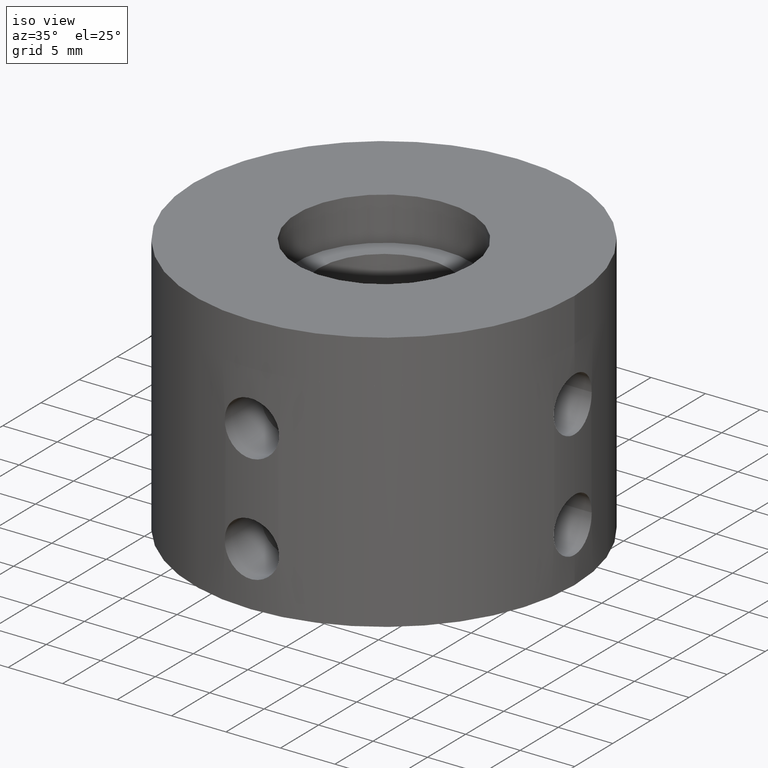
[diagram: clean part render]
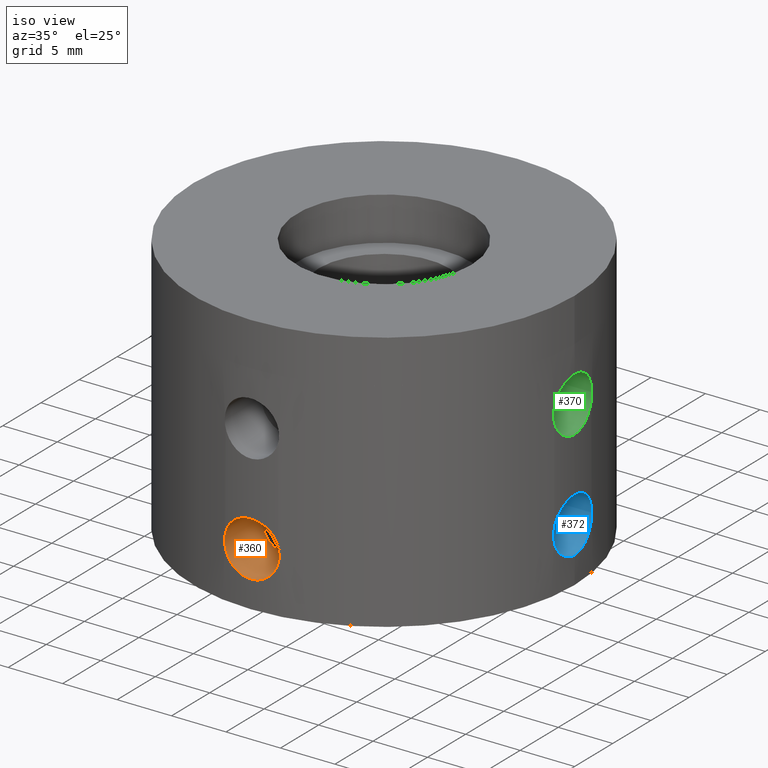
[diagram: same view with three faces highlighted in distinct colors, each labeled with its STEP entity id]
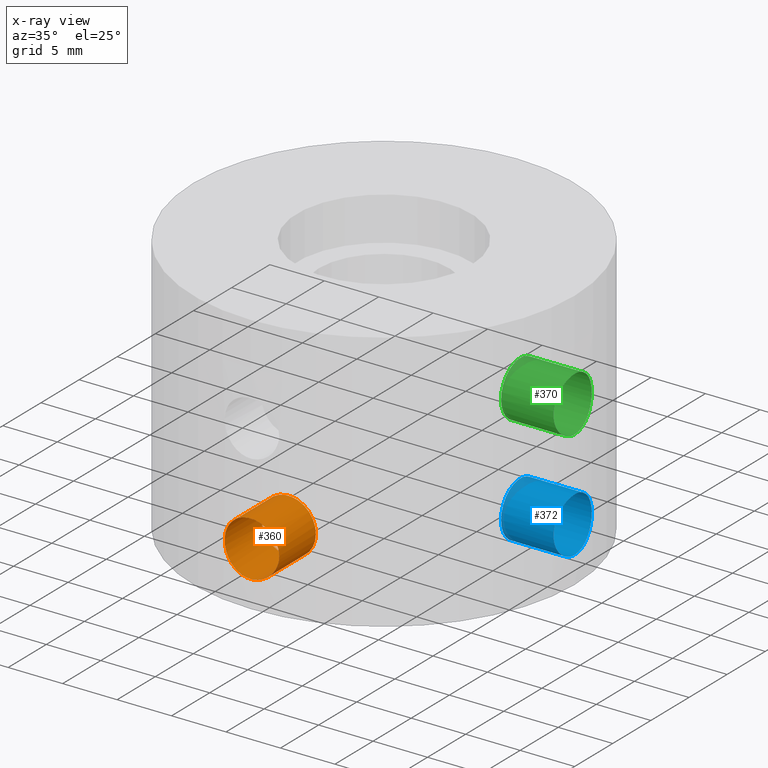
[diagram: x-ray of the same camera — body ghosted, the three highlighted faces saturated]
A machine part, iso view with three faces highlighted in distinct colors.
The next image is the same camera in x-ray (body ghosted, the three faces saturated) — at least one of them is partly hidden behind the body in this view.
Their STEP definitions:

[orange] entity #360 — the highlighted cylindrical surface (bore or boss wall) has radius 2.5 mm, axis along (-0, 1, -0).
#360 = ADVANCED_FACE( '', ( #437, #438 ), #439, .F. );
#437 = FACE_OUTER_BOUND( '', #609, .T. );
#438 = FACE_OUTER_BOUND( '', #610, .T. );
#439 = CYLINDRICAL_SURFACE( '', #611, 2.50000000000000 );
#609 = EDGE_LOOP( '', ( #783 ) );
#610 = EDGE_LOOP( '', ( #784 ) );
#611 = AXIS2_PLACEMENT_3D( '', #785, #786, #787 );
#783 = ORIENTED_EDGE( '', *, *, #1192, .T. );
#784 = ORIENTED_EDGE( '', *, *, #1189, .T. );
#785 = CARTESIAN_POINT( '', ( 0.000000000000000, -17.5000000000000, -29.0000000000000 ) );
#786 = DIRECTION( '', ( -0.000000000000000, 1.00000000000000, -0.000000000000000 ) );
#787 = DIRECTION( '', ( 1.00000000000000, 0.000000000000000, 0.000000000000000 ) );
#1189 = EDGE_CURVE( '', #1304, #1304, #1305, .T. );
#1192 = EDGE_CURVE( '', #1310, #1310, #1311, .T. );
#1304 = VERTEX_POINT( '', #1685 );
#1305 = B_SPLINE_CURVE_WITH_KNOTS( '', 3, ( #1686, #1687, #1688, #1689, #1690, #1691, #1692, #1693, #1694, #1695, #1696, #1697, #1698, #1699, #1700, #1701, #1702, #1703, #1704, #1705, #1706, #1707, #1708, #1709, #1710, #1711, #1712, #1713, #1714, #1715, #1716, #1717, #1718, #1719, #1720, #1721, #1722, #1723, #1724, #1725, #1726, #1727, #1728, #1729, #1730, #1731, #1732, #1733, #1734, #1735, #1736, #1737, #1738, #1739, #1740, #1741, #1742, #1743, #1744, #1745, #1746, #1747, #1748, #1749 ), .UNSPECIFIED., .T., .F., ( 2, 2, 2, 2, 2, 2, 2, 2, 2, 2, 2, 2, 2, 2, 2, 2, 2, 2, 2, 2, 2, 2, 2, 2, 2, 2, 2, 2, 2, 2, 2, 2, 2, 2 ), ( -0.000489074391735322, 0.000000000000000, 0.000489074391735320, 0.000978148783470640, 0.00146722317520596, 0.00195629756694128, 0.00244537195867660, 0.00293444635041192, 0.00342352074214724, 0.00391259513388256, 0.00440166952561788, 0.00489074391735320, 0.00537981830908852, 0.00586889270082384, 0.00635796709255916, 0.00684704148429448, 0.00733611587602980, 0.00782519026776512, 0.00831426465950044, 0.00880333905123576, 0.00929241344297108, 0.00978148783470640, 0.0102705622264417, 0.0107596366181770, 0.0112487110099124, 0.0117377854016477, 0.0122268597933830, 0.0127159341851183, 0.0132050085768536, 0.0136940829685890, 0.0146722317520596, 0.0151613061437949, 0.0156503805355302, 0.0161394549272656 ), .UNSPECIFIED. );
#1310 = VERTEX_POINT( '', #1754 );
#1311 = CIRCLE( '', #1755, 2.50000000000000 );
#1685 = CARTESIAN_POINT( '', ( 2.50000000000000, -17.3205080756888, -29.0000000000000 ) );
#1686 = CARTESIAN_POINT( '', ( 2.50000000000000, -17.3205080756888, -29.1653887530029 ) );
#1687 = CARTESIAN_POINT( '', ( 2.50000000000000, -17.3205080756888, -28.8346112469971 ) );
#1688 = CARTESIAN_POINT( '', ( 2.48375005439057, -17.3228755735567, -28.6720291116467 ) );
#1689 = CARTESIAN_POINT( '', ( 2.42011983415809, -17.3318796573807, -28.3522352088859 ) );
#1690 = CARTESIAN_POINT( '', ( 2.37195188220817, -17.3386232166662, -28.1933502748282 ) );
#1691 = CARTESIAN_POINT( '', ( 2.24639795610236, -17.3553365569166, -27.8907048483610 ) );
#1692 = CARTESIAN_POINT( '', ( 2.16959767322640, -17.3652293728603, -27.7471975144319 ) );
#1693 = CARTESIAN_POINT( '', ( 1.98818689140878, -17.3869335456414, -27.4756047046959 ) );
#1694 = CARTESIAN_POINT( '', ( 1.88273700484890, -17.3988131925760, -27.3471780258212 ) );
#1695 = CARTESIAN_POINT( '', ( 1.65241163963693, -17.4221966156043, -27.1169028487759 ) );
#1696 = CARTESIAN_POINT( '', ( 1.52669622257395, -17.4338170326531, -27.0134933070715 ) );
#1697 = CARTESIAN_POINT( '', ( 1.25349885123339, -17.4555870228991, -26.8307257372503 ) );
#1698 = CARTESIAN_POINT( '', ( 1.10830857915623, -17.4655182767391, -26.7531908110721 ) );
#1699 = CARTESIAN_POINT( '', ( 0.807585234298986, -17.4820045381267, -26.6284381670670 ) );
#1700 = CARTESIAN_POINT( '', ( 0.649822633085166, -17.4886763560253, -26.5803276802069 ) );
#1701 = CARTESIAN_POINT( '', ( 0.327023422269617, -17.4976891566160, -26.5160234963008 ) );
#1702 = CARTESIAN_POINT( '', ( 0.164677534772312, -17.4999868203029, -26.5000922578938 ) );
#1703 = CARTESIAN_POINT( '', ( -0.161864352663193, -17.5000130666400, -26.4999085335056 ) );
#1704 = CARTESIAN_POINT( '', ( -0.327737723393054, -17.4976665366731, -26.5161856257475 ) );
#1705 = CARTESIAN_POINT( '', ( -0.648525581797024, -17.4887152419410, -26.5800494982680 ) );
#1706 = CARTESIAN_POINT( '', ( -0.804465563497045, -17.4821579416789, -26.6272997505694 ) );
#1707 = CARTESIAN_POINT( '', ( -1.10740105850528, -17.4655854192260, -26.7526606370817 ) );
#1708 = CARTESIAN_POINT( '', ( -1.25349955951706, -17.4555770013346, -26.8308464782993 ) );
#1709 = CARTESIAN_POINT( '', ( -1.52415447594400, -17.4340294461347, -27.0116737491357 ) );
#1710 = CARTESIAN_POINT( '', ( -1.65059013684919, -17.4223787060199, -27.1151369751400 ) );
#1711 = CARTESIAN_POINT( '', ( -1.88372181932627, -17.3987160354789, -27.3481075913539 ) );
#1712 = CARTESIAN_POINT( '', ( -1.98701142548394, -17.3870669816768, -27.4741321047775 ) );
#1713 = CARTESIAN_POINT( '', ( -2.16806915326313, -17.3654193377813, -27.7446261969663 ) );
#1714 = CARTESIAN_POINT( '', ( -2.24646905758116, -17.3553272354625, -27.8908588641385 ) );
#1715 = CARTESIAN_POINT( '', ( -2.37195868793999, -17.3386221672705, -28.1933840637356 ) );
#1716 = CARTESIAN_POINT( '', ( -2.41934185317207, -17.3319887773045, -28.3492046382361 ) );
#1717 = CARTESIAN_POINT( '', ( -2.48350961982411, -17.3229105506944, -28.6699551944893 ) );
#1718 = CARTESIAN_POINT( '', ( -2.49993744371716, -17.3205171049098, -28.8357919977070 ) );
#1719 = CARTESIAN_POINT( '', ( -2.50006219134147, -17.3204990991425, -29.1622976584583 ) );
#1720 = CARTESIAN_POINT( '', ( -2.48428818139188, -17.3227988081478, -29.3246993890653 ) );
#1721 = CARTESIAN_POINT( '', ( -2.42023288897565, -17.3318642701497, -29.6477578440925 ) );
#1722 = CARTESIAN_POINT( '', ( -2.37231553470365, -17.3385715935937, -29.8053823074157 ) );
#1723 = CARTESIAN_POINT( '', ( -2.24778206833119, -17.3551554782911, -30.1063441736563 ) );
#1724 = CARTESIAN_POINT( '', ( -2.17013755315987, -17.3651643350834, -30.2519763867538 ) );
#1725 = CARTESIAN_POINT( '', ( -1.98781455164967, -17.3869785383297, -30.5249705508217 ) );
#1726 = CARTESIAN_POINT( '', ( -1.88455980893661, -17.3986155516757, -30.6507539239646 ) );
#1727 = CARTESIAN_POINT( '', ( -1.65432593641216, -17.4220146505674, -30.8814249618461 ) );
#1728 = CARTESIAN_POINT( '', ( -1.52589889630590, -17.4338789039367, -30.9870199982675 ) );
#1729 = CARTESIAN_POINT( '', ( -1.25472142408134, -17.4554912628326, -31.1684764382427 ) );
#1730 = CARTESIAN_POINT( '', ( -1.11131226557187, -17.4653361941806, -31.2454090618979 ) );
#1731 = CARTESIAN_POINT( '', ( -0.808563706969454, -17.4819680831175, -31.3713079805532 ) );
#1732 = CARTESIAN_POINT( '', ( -0.649900884721679, -17.4886588963650, -31.4195434902369 ) );
#1733 = CARTESIAN_POINT( '', ( -0.330269181233335, -17.4976136493322, -31.4834419922835 ) );
#1734 = CARTESIAN_POINT( '', ( -0.167426063724433, -17.4999794691530, -31.4998562840184 ) );
#1735 = CARTESIAN_POINT( '', ( 0.163106277650211, -17.5000202642677, -31.5001418499261 ) );
#1736 = CARTESIAN_POINT( '', ( 0.325666194006859, -17.4977012606733, -31.4840557735051 ) );
#1737 = CARTESIAN_POINT( '', ( 0.645592170960222, -17.4888198180004, -31.4207028534287 ) );
#1738 = CARTESIAN_POINT( '', ( 0.804646892438287, -17.4821481653381, -31.3726264795809 ) );
#1739 = CARTESIAN_POINT( '', ( 1.10725278250377, -17.4655933873425, -31.2473994546490 ) );
#1740 = CARTESIAN_POINT( '', ( 1.25084286177342, -17.4557724728432, -31.1707352647557 ) );
#1741 = CARTESIAN_POINT( '', ( 1.52275225870540, -17.4341568780118, -30.9894534458265 ) );
#1742 = CARTESIAN_POINT( '', ( 1.65120149566898, -17.4223116379704, -30.8841544612839 ) );
#1743 = CARTESIAN_POINT( '', ( 1.99682143856960, -17.3872465014420, -30.5390652343455 ) );
#1744 = CARTESIAN_POINT( '', ( 2.18331252924778, -17.3637281015119, -30.2606140254605 ) );
#1745 = CARTESIAN_POINT( '', ( 2.37084502506340, -17.3387736205025, -29.8096877160496 ) );
#1746 = CARTESIAN_POINT( '', ( 2.41911909665361, -17.3320203069142, -29.6519221726083 ) );
#1747 = CARTESIAN_POINT( '', ( 2.48374795185065, -17.3228768175138, -29.3288401353395 ) );
#1748 = CARTESIAN_POINT( '', ( 2.50000000000000, -17.3205080756888, -29.1653887530029 ) );
#1749 = CARTESIAN_POINT( '', ( 2.50000000000000, -17.3205080756888, -28.8346112469971 ) );
#1754 = CARTESIAN_POINT( '', ( 2.50000000000000, -12.5000000000000, -29.0000000000000 ) );
#1755 = AXIS2_PLACEMENT_3D( '', #2320, #2321, #2322 );
#2320 = CARTESIAN_POINT( '', ( 0.000000000000000, -12.5000000000000, -29.0000000000000 ) );
#2321 = DIRECTION( '', ( -0.000000000000000, 1.00000000000000, 0.000000000000000 ) );
#2322 = DIRECTION( '', ( 1.00000000000000, 0.000000000000000, 0.000000000000000 ) );

[blue] entity #372 — the highlighted cylindrical surface (bore or boss wall) has radius 2.5 mm, axis along (-1, 0, -0).
#372 = ADVANCED_FACE( '', ( #477, #478 ), #479, .F. );
#477 = FACE_OUTER_BOUND( '', #649, .T. );
#478 = FACE_OUTER_BOUND( '', #650, .T. );
#479 = CYLINDRICAL_SURFACE( '', #651, 2.50000000000000 );
#649 = EDGE_LOOP( '', ( #847 ) );
#650 = EDGE_LOOP( '', ( #848 ) );
#651 = AXIS2_PLACEMENT_3D( '', #849, #850, #851 );
#847 = ORIENTED_EDGE( '', *, *, #1204, .T. );
#848 = ORIENTED_EDGE( '', *, *, #1187, .T. );
#849 = CARTESIAN_POINT( '', ( 17.5000000000000, -1.07153055959458E-015, -29.0000000000000 ) );
#850 = DIRECTION( '', ( -1.00000000000000, 6.12303176911189E-017, -0.000000000000000 ) );
#851 = DIRECTION( '', ( 6.12303176911189E-017, 1.00000000000000, 0.000000000000000 ) );
#1187 = EDGE_CURVE( '', #1300, #1300, #1301, .T. );
#1204 = EDGE_CURVE( '', #1334, #1334, #1335, .T. );
#1300 = VERTEX_POINT( '', #1555 );
#1301 = B_SPLINE_CURVE_WITH_KNOTS( '', 3, ( #1556, #1557, #1558, #1559, #1560, #1561, #1562, #1563, #1564, #1565, #1566, #1567, #1568, #1569, #1570, #1571, #1572, #1573, #1574, #1575, #1576, #1577, #1578, #1579, #1580, #1581, #1582, #1583, #1584, #1585, #1586, #1587, #1588, #1589, #1590, #1591, #1592, #1593, #1594, #1595, #1596, #1597, #1598, #1599, #1600, #1601, #1602, #1603, #1604, #1605, #1606, #1607, #1608, #1609, #1610, #1611, #1612, #1613, #1614, #1615, #1616, #1617, #1618, #1619 ), .UNSPECIFIED., .T., .F., ( 2, 2, 2, 2, 2, 2, 2, 2, 2, 2, 2, 2, 2, 2, 2, 2, 2, 2, 2, 2, 2, 2, 2, 2, 2, 2, 2, 2, 2, 2, 2, 2, 2, 2 ), ( -0.000489074391735318, 0.000000000000000, 0.000489074391735320, 0.000978148783470640, 0.00146722317520596, 0.00195629756694128, 0.00244537195867660, 0.00293444635041192, 0.00342352074214724, 0.00391259513388256, 0.00440166952561788, 0.00489074391735321, 0.00537981830908853, 0.00586889270082385, 0.00635796709255917, 0.00684704148429449, 0.00733611587602981, 0.00782519026776513, 0.00831426465950045, 0.00880333905123577, 0.00929241344297109, 0.00978148783470641, 0.0102705622264417, 0.0107596366181771, 0.0112487110099124, 0.0117377854016477, 0.0122268597933830, 0.0127159341851183, 0.0132050085768537, 0.0136940829685890, 0.0146722317520596, 0.0151613061437949, 0.0156503805355302, 0.0161394549272656 ), .UNSPECIFIED. );
#1334 = VERTEX_POINT( '', #1990 );
#1335 = CIRCLE( '', #1991, 2.50000000000000 );
#1555 = CARTESIAN_POINT( '', ( 17.3205080756888, 2.50000000000000, -29.0000000000000 ) );
#1556 = CARTESIAN_POINT( '', ( 17.3205080756888, 2.50000000000000, -29.1653887530028 ) );
#1557 = CARTESIAN_POINT( '', ( 17.3205080756888, 2.50000000000000, -28.8346112469971 ) );
#1558 = CARTESIAN_POINT( '', ( 17.3228755735567, 2.48375005439057, -28.6720291116466 ) );
#1559 = CARTESIAN_POINT( '', ( 17.3318796573807, 2.42011983415809, -28.3522352088859 ) );
#1560 = CARTESIAN_POINT( '', ( 17.3386232166662, 2.37195188220817, -28.1933502748283 ) );
#1561 = CARTESIAN_POINT( '', ( 17.3553365569166, 2.24639795610235, -27.8907048483610 ) );
#1562 = CARTESIAN_POINT( '', ( 17.3652293728603, 2.16959767322640, -27.7471975144319 ) );
#1563 = CARTESIAN_POINT( '', ( 17.3869335456414, 1.98818689140878, -27.4756047046959 ) );
#1564 = CARTESIAN_POINT( '', ( 17.3988131925760, 1.88273700484889, -27.3471780258212 ) );
#1565 = CARTESIAN_POINT( '', ( 17.4221966156043, 1.65241163963692, -27.1169028487759 ) );
#1566 = CARTESIAN_POINT( '', ( 17.4338170326531, 1.52669622257395, -27.0134933070715 ) );
#1567 = CARTESIAN_POINT( '', ( 17.4555870228991, 1.25349885123339, -26.8307257372504 ) );
#1568 = CARTESIAN_POINT( '', ( 17.4655182767391, 1.10830857915622, -26.7531908110721 ) );
#1569 = CARTESIAN_POINT( '', ( 17.4820045381267, 0.807585234298985, -26.6284381670670 ) );
#1570 = CARTESIAN_POINT( '', ( 17.4886763560253, 0.649822633085165, -26.5803276802069 ) );
#1571 = CARTESIAN_POINT( '', ( 17.4976891566160, 0.327023422269616, -26.5160234963008 ) );
#1572 = CARTESIAN_POINT( '', ( 17.4999868203029, 0.164677534772310, -26.5000922578938 ) );
#1573 = CARTESIAN_POINT( '', ( 17.5000130666400, -0.161864352663194, -26.4999085335056 ) );
#1574 = CARTESIAN_POINT( '', ( 17.4976665366731, -0.327737723393056, -26.5161856257475 ) );
#1575 = CARTESIAN_POINT( '', ( 17.4887152419410, -0.648525581797025, -26.5800494982680 ) );
#1576 = CARTESIAN_POINT( '', ( 17.4821579416789, -0.804465563497046, -26.6272997505694 ) );
#1577 = CARTESIAN_POINT( '', ( 17.4655854192260, -1.10740105850528, -26.7526606370817 ) );
#1578 = CARTESIAN_POINT( '', ( 17.4555770013346, -1.25349955951706, -26.8308464782993 ) );
#1579 = CARTESIAN_POINT( '', ( 17.4340294461347, -1.52415447594400, -27.0116737491357 ) );
#1580 = CARTESIAN_POINT( '', ( 17.4223787060199, -1.65059013684919, -27.1151369751399 ) );
#1581 = CARTESIAN_POINT( '', ( 17.3987160354789, -1.88372181932628, -27.3481075913539 ) );
#1582 = CARTESIAN_POINT( '', ( 17.3870669816768, -1.98701142548394, -27.4741321047775 ) );
#1583 = CARTESIAN_POINT( '', ( 17.3654193377813, -2.16806915326313, -27.7446261969663 ) );
#1584 = CARTESIAN_POINT( '', ( 17.3553272354625, -2.24646905758116, -27.8908588641385 ) );
#1585 = CARTESIAN_POINT( '', ( 17.3386221672705, -2.37195868793999, -28.1933840637356 ) );
#1586 = CARTESIAN_POINT( '', ( 17.3319887773045, -2.41934185317208, -28.3492046382361 ) );
#1587 = CARTESIAN_POINT( '', ( 17.3229105506944, -2.48350961982411, -28.6699551944893 ) );
#1588 = CARTESIAN_POINT( '', ( 17.3205171049098, -2.49993744371716, -28.8357919977070 ) );
#1589 = CARTESIAN_POINT( '', ( 17.3204990991425, -2.50006219134147, -29.1622976584583 ) );
#1590 = CARTESIAN_POINT( '', ( 17.3227988081478, -2.48428818139188, -29.3246993890653 ) );
#1591 = CARTESIAN_POINT( '', ( 17.3318642701497, -2.42023288897565, -29.6477578440925 ) );
#1592 = CARTESIAN_POINT( '', ( 17.3385715935937, -2.37231553470365, -29.8053823074157 ) );
#1593 = CARTESIAN_POINT( '', ( 17.3551554782911, -2.24778206833119, -30.1063441736563 ) );
#1594 = CARTESIAN_POINT( '', ( 17.3651643350834, -2.17013755315987, -30.2519763867538 ) );
#1595 = CARTESIAN_POINT( '', ( 17.3869785383297, -1.98781455164967, -30.5249705508218 ) );
#1596 = CARTESIAN_POINT( '', ( 17.3986155516757, -1.88455980893661, -30.6507539239646 ) );
#1597 = CARTESIAN_POINT( '', ( 17.4220146505674, -1.65432593641216, -30.8814249618462 ) );
#1598 = CARTESIAN_POINT( '', ( 17.4338789039367, -1.52589889630590, -30.9870199982675 ) );
#1599 = CARTESIAN_POINT( '', ( 17.4554912628326, -1.25472142408134, -31.1684764382427 ) );
#1600 = CARTESIAN_POINT( '', ( 17.4653361941806, -1.11131226557187, -31.2454090618979 ) );
#1601 = CARTESIAN_POINT( '', ( 17.4819680831175, -0.808563706969454, -31.3713079805532 ) );
#1602 = CARTESIAN_POINT( '', ( 17.4886588963650, -0.649900884721677, -31.4195434902369 ) );
#1603 = CARTESIAN_POINT( '', ( 17.4976136493322, -0.330269181233334, -31.4834419922835 ) );
#1604 = CARTESIAN_POINT( '', ( 17.4999794691530, -0.167426063724430, -31.4998562840184 ) );
#1605 = CARTESIAN_POINT( '', ( 17.5000202642677, 0.163106277650214, -31.5001418499261 ) );
#1606 = CARTESIAN_POINT( '', ( 17.4977012606733, 0.325666194006861, -31.4840557735051 ) );
#1607 = CARTESIAN_POINT( '', ( 17.4888198180004, 0.645592170960223, -31.4207028534287 ) );
#1608 = CARTESIAN_POINT( '', ( 17.4821481653381, 0.804646892438290, -31.3726264795809 ) );
#1609 = CARTESIAN_POINT( '', ( 17.4655933873425, 1.10725278250377, -31.2473994546490 ) );
#1610 = CARTESIAN_POINT( '', ( 17.4557724728432, 1.25084286177342, -31.1707352647557 ) );
#1611 = CARTESIAN_POINT( '', ( 17.4341568780119, 1.52275225870540, -30.9894534458265 ) );
#1612 = CARTESIAN_POINT( '', ( 17.4223116379704, 1.65120149566898, -30.8841544612839 ) );
#1613 = CARTESIAN_POINT( '', ( 17.3872465014419, 1.99682143856960, -30.5390652343455 ) );
#1614 = CARTESIAN_POINT( '', ( 17.3637281015119, 2.18331252924779, -30.2606140254605 ) );
#1615 = CARTESIAN_POINT( '', ( 17.3387736205025, 2.37084502506341, -29.8096877160496 ) );
#1616 = CARTESIAN_POINT( '', ( 17.3320203069142, 2.41911909665361, -29.6519221726083 ) );
#1617 = CARTESIAN_POINT( '', ( 17.3228768175138, 2.48374795185065, -29.3288401353395 ) );
#1618 = CARTESIAN_POINT( '', ( 17.3205080756888, 2.50000000000000, -29.1653887530028 ) );
#1619 = CARTESIAN_POINT( '', ( 17.3205080756888, 2.50000000000000, -28.8346112469971 ) );
#1990 = CARTESIAN_POINT( '', ( 12.5000000000000, 2.50000000000000, -29.0000000000000 ) );
#1991 = AXIS2_PLACEMENT_3D( '', #2344, #2345, #2346 );
#2344 = CARTESIAN_POINT( '', ( 12.5000000000000, -7.65378971138986E-016, -29.0000000000000 ) );
#2345 = DIRECTION( '', ( -1.00000000000000, 6.12303176911189E-017, 0.000000000000000 ) );
#2346 = DIRECTION( '', ( 6.12303176911189E-017, 1.00000000000000, 0.000000000000000 ) );

[green] entity #370 — the highlighted cylindrical surface (bore or boss wall) has radius 2.5 mm, axis along (-1, 0, -0).
#370 = ADVANCED_FACE( '', ( #471, #472 ), #473, .F. );
#471 = FACE_OUTER_BOUND( '', #643, .T. );
#472 = FACE_OUTER_BOUND( '', #644, .T. );
#473 = CYLINDRICAL_SURFACE( '', #645, 2.50000000000000 );
#643 = EDGE_LOOP( '', ( #837 ) );
#644 = EDGE_LOOP( '', ( #838 ) );
#645 = AXIS2_PLACEMENT_3D( '', #839, #840, #841 );
#837 = ORIENTED_EDGE( '', *, *, #1203, .T. );
#838 = ORIENTED_EDGE( '', *, *, #1186, .T. );
#839 = CARTESIAN_POINT( '', ( 17.5000000000000, -1.07153055959458E-015, -19.0000000000000 ) );
#840 = DIRECTION( '', ( -1.00000000000000, 6.12303176911189E-017, -0.000000000000000 ) );
#841 = DIRECTION( '', ( 6.12303176911189E-017, 1.00000000000000, 0.000000000000000 ) );
#1186 = EDGE_CURVE( '', #1298, #1298, #1299, .T. );
#1203 = EDGE_CURVE( '', #1332, #1332, #1333, .T. );
#1298 = VERTEX_POINT( '', #1490 );
#1299 = B_SPLINE_CURVE_WITH_KNOTS( '', 3, ( #1491, #1492, #1493, #1494, #1495, #1496, #1497, #1498, #1499, #1500, #1501, #1502, #1503, #1504, #1505, #1506, #1507, #1508, #1509, #1510, #1511, #1512, #1513, #1514, #1515, #1516, #1517, #1518, #1519, #1520, #1521, #1522, #1523, #1524, #1525, #1526, #1527, #1528, #1529, #1530, #1531, #1532, #1533, #1534, #1535, #1536, #1537, #1538, #1539, #1540, #1541, #1542, #1543, #1544, #1545, #1546, #1547, #1548, #1549, #1550, #1551, #1552, #1553, #1554 ), .UNSPECIFIED., .T., .F., ( 2, 2, 2, 2, 2, 2, 2, 2, 2, 2, 2, 2, 2, 2, 2, 2, 2, 2, 2, 2, 2, 2, 2, 2, 2, 2, 2, 2, 2, 2, 2, 2, 2, 2 ), ( -0.000489074391735317, 0.000000000000000, 0.000489074391735321, 0.000978148783470641, 0.00146722317520596, 0.00195629756694128, 0.00244537195867660, 0.00293444635041192, 0.00342352074214724, 0.00391259513388257, 0.00440166952561789, 0.00489074391735321, 0.00537981830908853, 0.00586889270082385, 0.00635796709255917, 0.00684704148429449, 0.00733611587602981, 0.00782519026776513, 0.00831426465950045, 0.00880333905123577, 0.00929241344297109, 0.00978148783470641, 0.0102705622264417, 0.0107596366181771, 0.0112487110099124, 0.0117377854016477, 0.0122268597933830, 0.0127159341851183, 0.0132050085768537, 0.0136940829685890, 0.0146722317520596, 0.0151613061437949, 0.0156503805355302, 0.0161394549272656 ), .UNSPECIFIED. );
#1332 = VERTEX_POINT( '', #1988 );
#1333 = CIRCLE( '', #1989, 2.50000000000000 );
#1490 = CARTESIAN_POINT( '', ( 17.3205080756888, 2.50000000000000, -19.0000000000000 ) );
#1491 = CARTESIAN_POINT( '', ( 17.3205080756888, 2.50000000000000, -19.1653887530028 ) );
#1492 = CARTESIAN_POINT( '', ( 17.3205080756888, 2.50000000000000, -18.8346112469971 ) );
#1493 = CARTESIAN_POINT( '', ( 17.3228755735567, 2.48375005439057, -18.6720291116467 ) );
#1494 = CARTESIAN_POINT( '', ( 17.3318796573807, 2.42011983415809, -18.3522352088859 ) );
#1495 = CARTESIAN_POINT( '', ( 17.3386232166662, 2.37195188220817, -18.1933502748283 ) );
#1496 = CARTESIAN_POINT( '', ( 17.3553365569166, 2.24639795610235, -17.8907048483610 ) );
#1497 = CARTESIAN_POINT( '', ( 17.3652293728603, 2.16959767322640, -17.7471975144319 ) );
#1498 = CARTESIAN_POINT( '', ( 17.3869335456414, 1.98818689140878, -17.4756047046959 ) );
#1499 = CARTESIAN_POINT( '', ( 17.3988131925760, 1.88273700484889, -17.3471780258212 ) );
#1500 = CARTESIAN_POINT( '', ( 17.4221966156043, 1.65241163963692, -17.1169028487759 ) );
#1501 = CARTESIAN_POINT( '', ( 17.4338170326531, 1.52669622257394, -17.0134933070715 ) );
#1502 = CARTESIAN_POINT( '', ( 17.4555870228991, 1.25349885123339, -16.8307257372504 ) );
#1503 = CARTESIAN_POINT( '', ( 17.4655182767391, 1.10830857915622, -16.7531908110721 ) );
#1504 = CARTESIAN_POINT( '', ( 17.4820045381267, 0.807585234298985, -16.6284381670670 ) );
#1505 = CARTESIAN_POINT( '', ( 17.4886763560253, 0.649822633085165, -16.5803276802069 ) );
#1506 = CARTESIAN_POINT( '', ( 17.4976891566160, 0.327023422269616, -16.5160234963008 ) );
#1507 = CARTESIAN_POINT( '', ( 17.4999868203029, 0.164677534772310, -16.5000922578938 ) );
#1508 = CARTESIAN_POINT( '', ( 17.5000130666400, -0.161864352663194, -16.4999085335056 ) );
#1509 = CARTESIAN_POINT( '', ( 17.4976665366731, -0.327737723393057, -16.5161856257475 ) );
#1510 = CARTESIAN_POINT( '', ( 17.4887152419410, -0.648525581797026, -16.5800494982680 ) );
#1511 = CARTESIAN_POINT( '', ( 17.4821579416789, -0.804465563497047, -16.6272997505694 ) );
#1512 = CARTESIAN_POINT( '', ( 17.4655854192260, -1.10740105850529, -16.7526606370817 ) );
#1513 = CARTESIAN_POINT( '', ( 17.4555770013346, -1.25349955951706, -16.8308464782993 ) );
#1514 = CARTESIAN_POINT( '', ( 17.4340294461347, -1.52415447594400, -17.0116737491357 ) );
#1515 = CARTESIAN_POINT( '', ( 17.4223787060199, -1.65059013684919, -17.1151369751399 ) );
#1516 = CARTESIAN_POINT( '', ( 17.3987160354789, -1.88372181932628, -17.3481075913539 ) );
#1517 = CARTESIAN_POINT( '', ( 17.3870669816768, -1.98701142548394, -17.4741321047775 ) );
#1518 = CARTESIAN_POINT( '', ( 17.3654193377813, -2.16806915326313, -17.7446261969663 ) );
#1519 = CARTESIAN_POINT( '', ( 17.3553272354626, -2.24646905758116, -17.8908588641385 ) );
#1520 = CARTESIAN_POINT( '', ( 17.3386221672705, -2.37195868793999, -18.1933840637356 ) );
#1521 = CARTESIAN_POINT( '', ( 17.3319887773045, -2.41934185317208, -18.3492046382361 ) );
#1522 = CARTESIAN_POINT( '', ( 17.3229105506944, -2.48350961982411, -18.6699551944893 ) );
#1523 = CARTESIAN_POINT( '', ( 17.3205171049098, -2.49993744371716, -18.8357919977070 ) );
#1524 = CARTESIAN_POINT( '', ( 17.3204990991425, -2.50006219134147, -19.1622976584583 ) );
#1525 = CARTESIAN_POINT( '', ( 17.3227988081479, -2.48428818139188, -19.3246993890653 ) );
#1526 = CARTESIAN_POINT( '', ( 17.3318642701497, -2.42023288897565, -19.6477578440925 ) );
#1527 = CARTESIAN_POINT( '', ( 17.3385715935937, -2.37231553470364, -19.8053823074157 ) );
#1528 = CARTESIAN_POINT( '', ( 17.3551554782911, -2.24778206833119, -20.1063441736563 ) );
#1529 = CARTESIAN_POINT( '', ( 17.3651643350834, -2.17013755315986, -20.2519763867538 ) );
#1530 = CARTESIAN_POINT( '', ( 17.3869785383296, -1.98781455164966, -20.5249705508217 ) );
#1531 = CARTESIAN_POINT( '', ( 17.3986155516757, -1.88455980893661, -20.6507539239646 ) );
#1532 = CARTESIAN_POINT( '', ( 17.4220146505674, -1.65432593641216, -20.8814249618461 ) );
#1533 = CARTESIAN_POINT( '', ( 17.4338789039367, -1.52589889630590, -20.9870199982675 ) );
#1534 = CARTESIAN_POINT( '', ( 17.4554912628326, -1.25472142408134, -21.1684764382427 ) );
#1535 = CARTESIAN_POINT( '', ( 17.4653361941806, -1.11131226557187, -21.2454090618979 ) );
#1536 = CARTESIAN_POINT( '', ( 17.4819680831175, -0.808563706969452, -21.3713079805532 ) );
#1537 = CARTESIAN_POINT( '', ( 17.4886588963650, -0.649900884721677, -21.4195434902369 ) );
#1538 = CARTESIAN_POINT( '', ( 17.4976136493322, -0.330269181233334, -21.4834419922835 ) );
#1539 = CARTESIAN_POINT( '', ( 17.4999794691530, -0.167426063724429, -21.4998562840184 ) );
#1540 = CARTESIAN_POINT( '', ( 17.5000202642677, 0.163106277650215, -21.5001418499261 ) );
#1541 = CARTESIAN_POINT( '', ( 17.4977012606733, 0.325666194006862, -21.4840557735051 ) );
#1542 = CARTESIAN_POINT( '', ( 17.4888198180004, 0.645592170960224, -21.4207028534287 ) );
#1543 = CARTESIAN_POINT( '', ( 17.4821481653381, 0.804646892438291, -21.3726264795809 ) );
#1544 = CARTESIAN_POINT( '', ( 17.4655933873425, 1.10725278250377, -21.2473994546490 ) );
#1545 = CARTESIAN_POINT( '', ( 17.4557724728432, 1.25084286177342, -21.1707352647557 ) );
#1546 = CARTESIAN_POINT( '', ( 17.4341568780118, 1.52275225870540, -20.9894534458266 ) );
#1547 = CARTESIAN_POINT( '', ( 17.4223116379704, 1.65120149566899, -20.8841544612839 ) );
#1548 = CARTESIAN_POINT( '', ( 17.3872465014419, 1.99682143856961, -20.5390652343454 ) );
#1549 = CARTESIAN_POINT( '', ( 17.3637281015119, 2.18331252924779, -20.2606140254605 ) );
#1550 = CARTESIAN_POINT( '', ( 17.3387736205025, 2.37084502506341, -19.8096877160496 ) );
#1551 = CARTESIAN_POINT( '', ( 17.3320203069142, 2.41911909665361, -19.6519221726083 ) );
#1552 = CARTESIAN_POINT( '', ( 17.3228768175138, 2.48374795185065, -19.3288401353396 ) );
#1553 = CARTESIAN_POINT( '', ( 17.3205080756888, 2.50000000000000, -19.1653887530028 ) );
#1554 = CARTESIAN_POINT( '', ( 17.3205080756888, 2.50000000000000, -18.8346112469971 ) );
#1988 = CARTESIAN_POINT( '', ( 12.5000000000000, 2.50000000000000, -19.0000000000000 ) );
#1989 = AXIS2_PLACEMENT_3D( '', #2341, #2342, #2343 );
#2341 = CARTESIAN_POINT( '', ( 12.5000000000000, -7.65378971138986E-016, -19.0000000000000 ) );
#2342 = DIRECTION( '', ( -1.00000000000000, 6.12303176911189E-017, 0.000000000000000 ) );
#2343 = DIRECTION( '', ( 6.12303176911189E-017, 1.00000000000000, 0.000000000000000 ) );